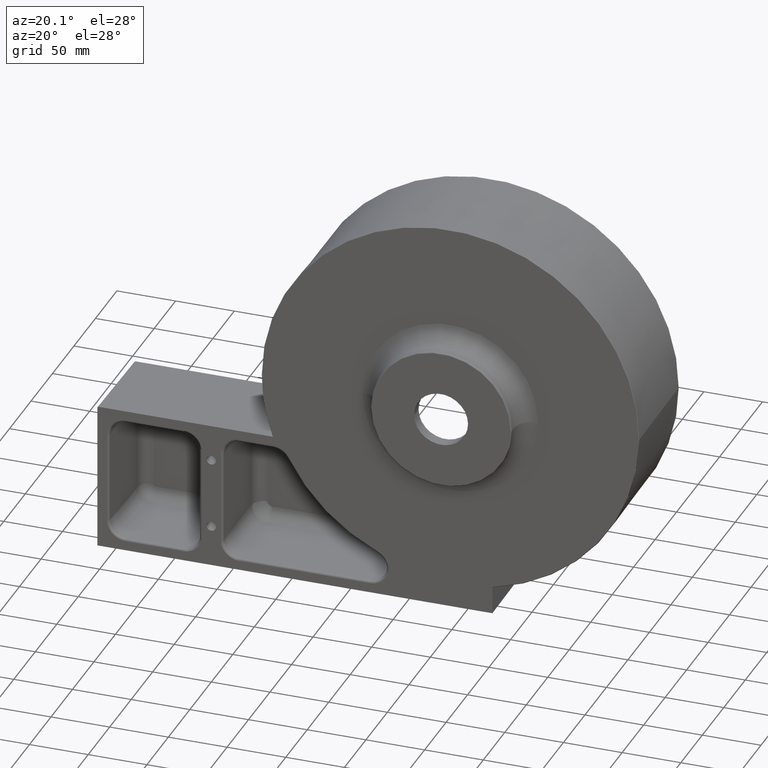
[diagram: clean part render]
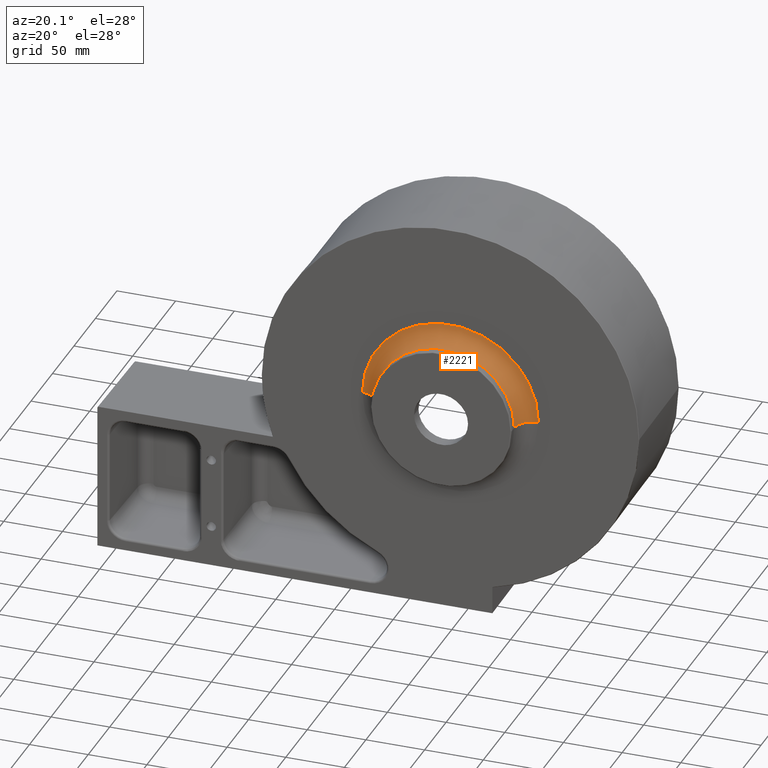
[diagram: same view with one face highlighted and labeled with its STEP entity id]
A machine part, auxiliary view. The second image highlights one B-rep face of the part: STEP entity #2221.
In plain terms, the highlighted toroidal blend (fillet) surface has major radius 75 mm and minor (blend) radius 15 mm.
Its self-contained STEP definition (entity closure, byte-faithful):
#82 = CIRCLE ( 'NONE', #1937, 75.00000000000004263 ) ;
#211 = CARTESIAN_POINT ( 'NONE',  ( 215.8447018501478851, 6.799390972752642703, 0.0000000000000000000 ) ) ;
#252 = CARTESIAN_POINT ( 'NONE',  ( 140.8447018501478851, 6.799390972752658691, 0.0000000000000000000 ) ) ;
#443 = ORIENTED_EDGE ( 'NONE', *, *, #1875, .T. ) ;
#463 = VERTEX_POINT ( 'NONE', #807 ) ;
#524 = VERTEX_POINT ( 'NONE', #2361 ) ;
#664 = VERTEX_POINT ( 'NONE', #1433 ) ;
#696 = DIRECTION ( 'NONE',  ( 1.000000000000000000, 0.0000000000000000000, 0.0000000000000000000 ) ) ;
#761 = ORIENTED_EDGE ( 'NONE', *, *, #2414, .T. ) ;
#807 = CARTESIAN_POINT ( 'NONE',  ( 80.84470185014784249, 6.799390972752665796, -7.347880794884121511E-15 ) ) ;
#1046 = DIRECTION ( 'NONE',  ( -1.214623636765614367E-16, -1.000000000000000000, -0.0000000000000000000 ) ) ;
#1131 = AXIS2_PLACEMENT_3D ( 'NONE', #211, #3232, #696 ) ;
#1204 = DIRECTION ( 'NONE',  ( 1.224646799147353207E-16, -1.487484948933726914E-32, -1.000000000000000000 ) ) ;
#1247 = CIRCLE ( 'NONE', #1667, 60.00000000000002842 ) ;
#1351 = CIRCLE ( 'NONE', #1131, 14.99999999999998579 ) ;
#1367 = DIRECTION ( 'NONE',  ( 1.000000000000000000, -1.387778780781444936E-16, 0.0000000000000000000 ) ) ;
#1401 = CARTESIAN_POINT ( 'NONE',  ( 65.84470185014781407, 6.799390972752662243, -9.184850993605153466E-15 ) ) ;
#1427 = EDGE_CURVE ( 'NONE', #2991, #664, #1351, .T. ) ;
#1430 = FACE_OUTER_BOUND ( 'NONE', #2729, .T. ) ;
#1433 = CARTESIAN_POINT ( 'NONE',  ( 200.8447018501479135, 6.799390972752651585, 0.0000000000000000000 ) ) ;
#1479 = DIRECTION ( 'NONE',  ( 1.000000000000000000, -1.156482317317870739E-16, 0.0000000000000000000 ) ) ;
#1607 = ORIENTED_EDGE ( 'NONE', *, *, #2388, .F. ) ;
#1667 = AXIS2_PLACEMENT_3D ( 'NONE', #252, #3300, #1479 ) ;
#1846 = CARTESIAN_POINT ( 'NONE',  ( 140.8447018501478851, 21.79939097275264359, 0.0000000000000000000 ) ) ;
#1866 = CARTESIAN_POINT ( 'NONE',  ( 215.8447018501479135, 21.79939097275263649, 0.0000000000000000000 ) ) ;
#1875 = EDGE_CURVE ( 'NONE', #524, #463, #2688, .T. ) ;
#1937 = AXIS2_PLACEMENT_3D ( 'NONE', #1846, #1046, #1367 ) ;
#2165 = DIRECTION ( 'NONE',  ( 1.214623636765614367E-16, 1.000000000000000000, 0.0000000000000000000 ) ) ;
#2169 = DIRECTION ( 'NONE',  ( -1.000000000000000000, 0.0000000000000000000, -1.224646799147352468E-16 ) ) ;
#2221 = ADVANCED_FACE ( 'NONE', ( #1430 ), #3126, .F. ) ;
#2361 = CARTESIAN_POINT ( 'NONE',  ( 65.84470185014782828, 21.79939097275265780, -9.184850993605151889E-15 ) ) ;
#2388 = EDGE_CURVE ( 'NONE', #664, #463, #1247, .T. ) ;
#2414 = EDGE_CURVE ( 'NONE', #2991, #524, #82, .T. ) ;
#2472 = AXIS2_PLACEMENT_3D ( 'NONE', #2690, #2165, #3194 ) ;
#2688 = CIRCLE ( 'NONE', #2965, 15.00000000000000000 ) ;
#2690 = CARTESIAN_POINT ( 'NONE',  ( 140.8447018501478567, 6.799390972752652473, 0.0000000000000000000 ) ) ;
#2729 = EDGE_LOOP ( 'NONE', ( #761, #443, #1607, #3251 ) ) ;
#2965 = AXIS2_PLACEMENT_3D ( 'NONE', #1401, #1204, #2169 ) ;
#2991 = VERTEX_POINT ( 'NONE', #1866 ) ;
#3126 = TOROIDAL_SURFACE ( 'NONE', #2472, 75.00000000000004263, 15.00000000000000000 ) ;
#3194 = DIRECTION ( 'NONE',  ( 1.000000000000000000, -1.214623636765614367E-16, 0.0000000000000000000 ) ) ;
#3232 = DIRECTION ( 'NONE',  ( -0.0000000000000000000, 0.0000000000000000000, 1.000000000000000000 ) ) ;
#3251 = ORIENTED_EDGE ( 'NONE', *, *, #1427, .F. ) ;
#3300 = DIRECTION ( 'NONE',  ( -1.214623636765614367E-16, -1.000000000000000000, -0.0000000000000000000 ) ) ;